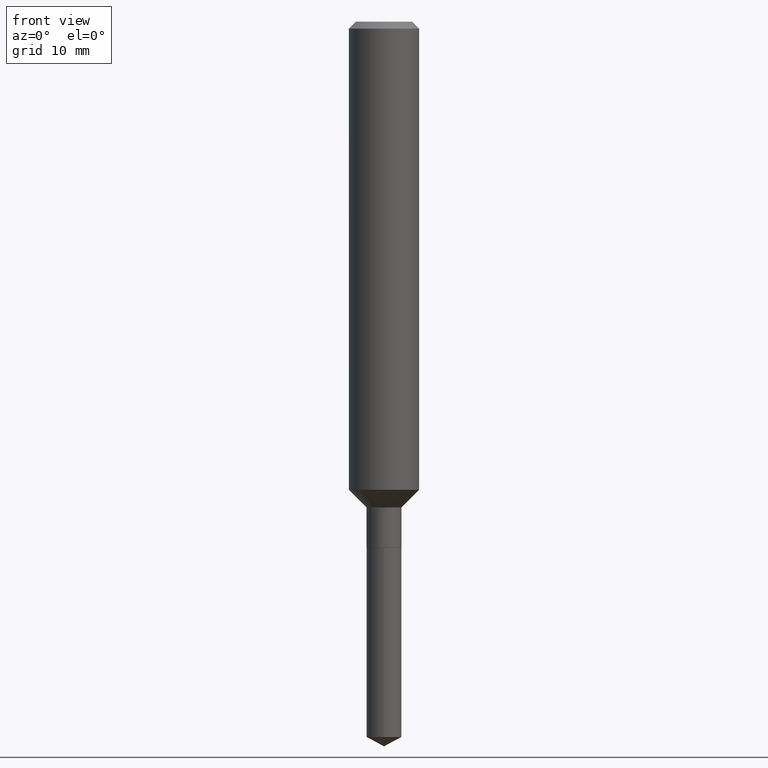
[diagram: clean part render]
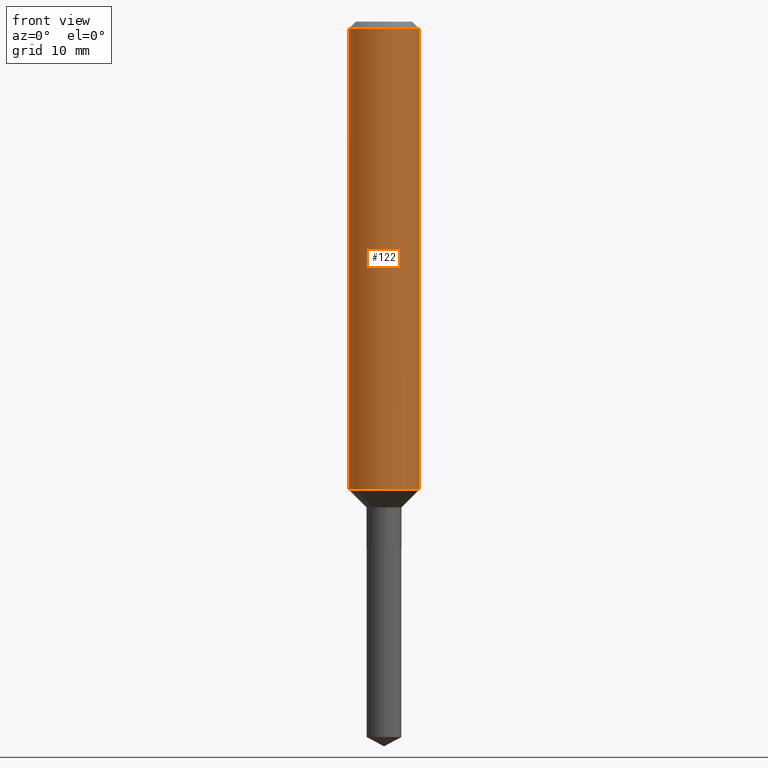
[diagram: same view with one face highlighted and labeled with its STEP entity id]
A machine part, front view. The second image highlights one B-rep face of the part: STEP entity #122.
In plain terms, the highlighted cylindrical surface (edge-blend (fillet) strip) has radius 2.9997 mm, axis along (-0, 0, 1).
Its self-contained STEP definition (entity closure, byte-faithful):
#30 = ORIENTED_EDGE ( 'NONE', *, *, #136, .F. ) ;
#37 = VECTOR ( 'NONE', #157, 39.37007874015748143 ) ;
#42 = LINE ( 'NONE', #244, #60 ) ;
#60 = VECTOR ( 'NONE', #134, 39.37007874015748143 ) ;
#91 = CARTESIAN_POINT ( 'NONE',  ( 3.855892940152412927E-29, -5.505193201020928046E-15, -1.576749999999999430 ) ) ;
#114 = DIRECTION ( 'NONE',  ( -2.445468806185136597E-29, 3.491481338843145583E-15, 1.000000000000000000 ) ) ;
#122 = ADVANCED_FACE ( 'NONE', ( #421 ), #295, .T. ) ;
#125 = CARTESIAN_POINT ( 'NONE',  ( 0.1181000000000002048, -6.329881093255677887E-15, -1.576749999999999430 ) ) ;
#128 = ORIENTED_EDGE ( 'NONE', *, *, #227, .F. ) ;
#134 = DIRECTION ( 'NONE',  ( -2.445468806185136877E-29, 3.491481338843145188E-15, 1.000000000000000000 ) ) ;
#136 = EDGE_CURVE ( 'NONE', #414, #384, #433, .T. ) ;
#146 = EDGE_CURVE ( 'NONE', #414, #439, #213, .T. ) ;
#157 = DIRECTION ( 'NONE',  ( -2.445468806185136877E-29, 3.491481338843145188E-15, 1.000000000000000000 ) ) ;
#166 = AXIS2_PLACEMENT_3D ( 'NONE', #179, #114, #265 ) ;
#179 = CARTESIAN_POINT ( 'NONE',  ( 5.776197320209327532E-31, -8.246878922347559293E-17, -0.02362000000000014088 ) ) ;
#190 = DIRECTION ( 'NONE',  ( -2.445468806185136597E-29, 3.491481338843145583E-15, 1.000000000000000000 ) ) ;
#194 = CARTESIAN_POINT ( 'NONE',  ( 0.1180999999999999966, -9.071566814582237199E-16, -0.02362000000000014088 ) ) ;
#203 = AXIS2_PLACEMENT_3D ( 'NONE', #91, #237, #390 ) ;
#213 = CIRCLE ( 'NONE', #203, 0.1181000000000002048 ) ;
#221 = ORIENTED_EDGE ( 'NONE', *, *, #453, .T. ) ;
#227 = EDGE_CURVE ( 'NONE', #384, #377, #416, .T. ) ;
#237 = DIRECTION ( 'NONE',  ( -2.445468806185136597E-29, 3.491481338843145583E-15, 1.000000000000000000 ) ) ;
#244 = CARTESIAN_POINT ( 'NONE',  ( 0.1181000000000001077, -8.246878922347488542E-16, 5.758764772215005345E-30 ) ) ;
#265 = DIRECTION ( 'NONE',  ( 1.000000000000000000, -6.982962677686266711E-15, 0.000000000000000000 ) ) ;
#273 = CARTESIAN_POINT ( 'NONE',  ( -0.1180999999999999966, -1.954680024189521583E-15, -0.02362000000000014088 ) ) ;
#295 = CYLINDRICAL_SURFACE ( 'NONE', #392, 0.1181000000000001077 ) ;
#297 = ORIENTED_EDGE ( 'NONE', *, *, #146, .T. ) ;
#305 = CARTESIAN_POINT ( 'NONE',  ( -0.1181000000000001077, 8.391509709326790846E-16, -5.809262341591049389E-30 ) ) ;
#312 = CARTESIAN_POINT ( 'NONE',  ( -0.1181000000000002048, -4.666042230088248272E-15, -1.576749999999999430 ) ) ;
#377 = VERTEX_POINT ( 'NONE', #194 ) ;
#384 = VERTEX_POINT ( 'NONE', #273 ) ;
#390 = DIRECTION ( 'NONE',  ( 1.000000000000000000, -6.982962677686268288E-15, 0.000000000000000000 ) ) ;
#392 = AXIS2_PLACEMENT_3D ( 'NONE', #462, #190, #437 ) ;
#414 = VERTEX_POINT ( 'NONE', #312 ) ;
#416 = CIRCLE ( 'NONE', #166, 0.1180999999999999966 ) ;
#421 = FACE_OUTER_BOUND ( 'NONE', #482, .T. ) ;
#433 = LINE ( 'NONE', #305, #37 ) ;
#437 = DIRECTION ( 'NONE',  ( 1.000000000000000000, -6.982962677686266711E-15, 4.876176775795935793E-29 ) ) ;
#439 = VERTEX_POINT ( 'NONE', #125 ) ;
#453 = EDGE_CURVE ( 'NONE', #439, #377, #42, .T. ) ;
#462 = CARTESIAN_POINT ( 'NONE',  ( 0.000000000000000000, 0.000000000000000000, 0.000000000000000000 ) ) ;
#482 = EDGE_LOOP ( 'NONE', ( #30, #297, #221, #128 ) ) ;